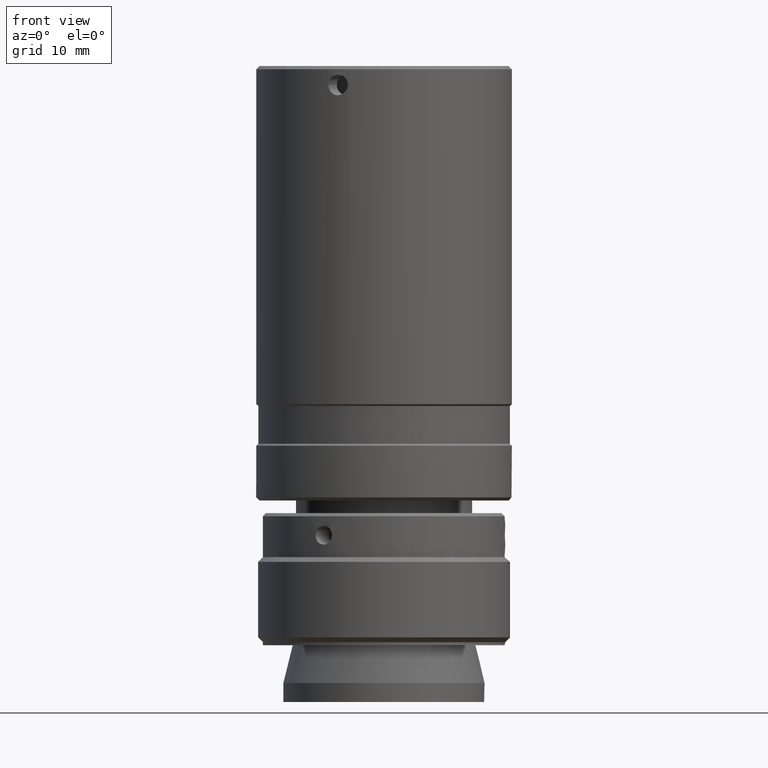
[diagram: clean part render]
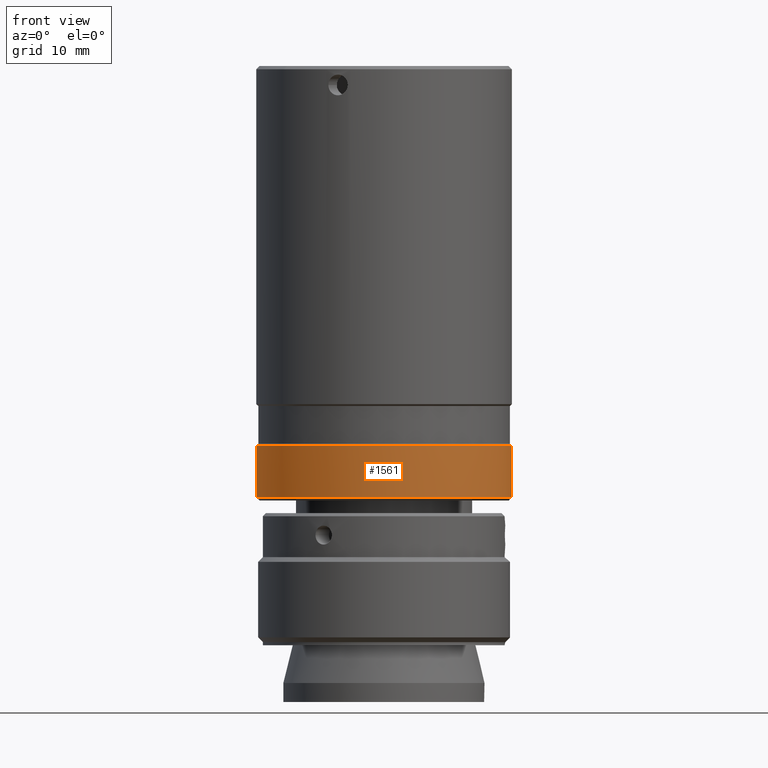
[diagram: same view with one face highlighted and labeled with its STEP entity id]
A machine part, front view. The second image highlights one B-rep face of the part: STEP entity #1561.
In plain terms, the highlighted cylindrical surface (bore or boss wall) has radius 20.32 mm, axis along (-0, -0, 1).
Its self-contained STEP definition (entity closure, byte-faithful):
#4 = CARTESIAN_POINT ( 'NONE',  ( 10.69009648840578919, 14.75685886466438212, 57.49999835367975010 ) ) ;
#40 = EDGE_CURVE ( 'NONE', #1174, #1174, #999, .T. ) ;
#65 = EDGE_CURVE ( 'NONE', #1579, #1579, #1234, .T. ) ;
#109 = CARTESIAN_POINT ( 'NONE',  ( -5.136313143430668582, 2.012163911859718990, 126.0035129321938570 ) ) ;
#138 = CARTESIAN_POINT ( 'NONE',  ( -20.96272253545274822, -10.73253084782716549, 65.70309341364894351 ) ) ;
#172 = ORIENTED_EDGE ( 'NONE', *, *, #40, .T. ) ;
#506 = DIRECTION ( 'NONE',  ( 0.7788586556383830795, 0.6271994854407734188, 0.000000000000000000 ) ) ;
#538 = ORIENTED_EDGE ( 'NONE', *, *, #65, .F. ) ;
#558 = EDGE_LOOP ( 'NONE', ( #538 ) ) ;
#711 = AXIS2_PLACEMENT_3D ( 'NONE', #990, #1524, #1398 ) ;
#770 = FACE_OUTER_BOUND ( 'NONE', #1478, .T. ) ;
#975 = AXIS2_PLACEMENT_3D ( 'NONE', #109, #1394, #1411 ) ;
#990 = CARTESIAN_POINT ( 'NONE',  ( -5.136313143430668582, 2.012163911859718990, 65.70309341364894351 ) ) ;
#994 = CYLINDRICAL_SURFACE ( 'NONE', #975, 20.32000224593320326 ) ;
#999 = CIRCLE ( 'NONE', #1395, 20.32000224593320326 ) ;
#1009 = CARTESIAN_POINT ( 'NONE',  ( -5.136313143430668582, 2.012163911859718990, 57.49999835367975010 ) ) ;
#1174 = VERTEX_POINT ( 'NONE', #4 ) ;
#1234 = CIRCLE ( 'NONE', #711, 20.32000193802833010 ) ;
#1394 = DIRECTION ( 'NONE',  ( -1.479114197289397135E-31, -9.860761315262647568E-32, 1.000000000000000000 ) ) ;
#1395 = AXIS2_PLACEMENT_3D ( 'NONE', #1009, #1535, #506 ) ;
#1398 = DIRECTION ( 'NONE',  ( -0.7788586556383828574, -0.6271994854407731967, 0.000000000000000000 ) ) ;
#1403 = FACE_OUTER_BOUND ( 'NONE', #558, .T. ) ;
#1411 = DIRECTION ( 'NONE',  ( 0.7788586556383830795, 0.6271994854407734188, 0.000000000000000000 ) ) ;
#1478 = EDGE_LOOP ( 'NONE', ( #172 ) ) ;
#1524 = DIRECTION ( 'NONE',  ( -1.479114197289397135E-31, -9.860761315262647568E-32, 1.000000000000000000 ) ) ;
#1535 = DIRECTION ( 'NONE',  ( -1.479114197289397135E-31, -9.860761315262647568E-32, 1.000000000000000000 ) ) ;
#1561 = ADVANCED_FACE ( 'NONE', ( #1403, #770 ), #994, .T. ) ;
#1579 = VERTEX_POINT ( 'NONE', #138 ) ;